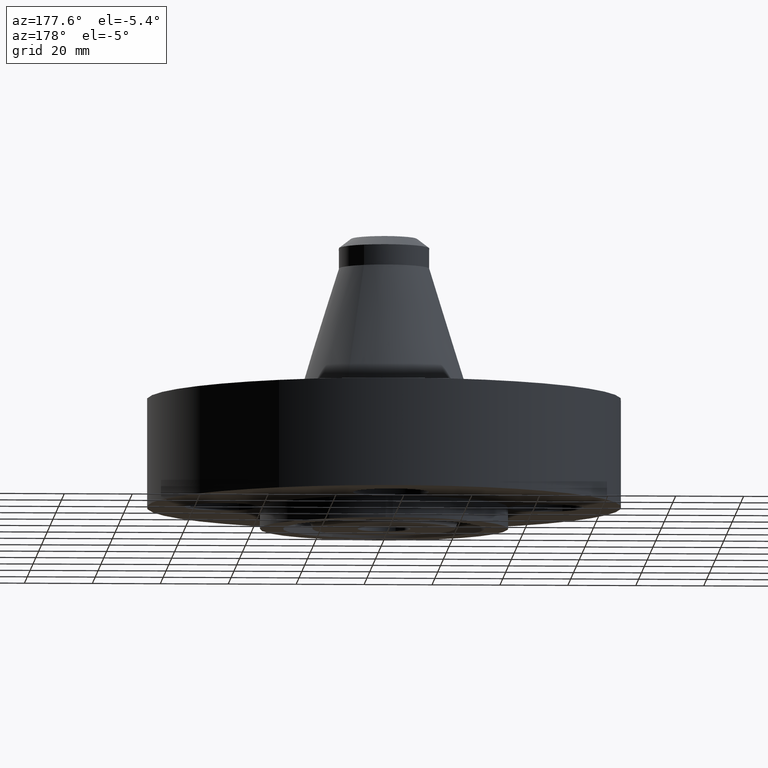
[diagram: clean part render]
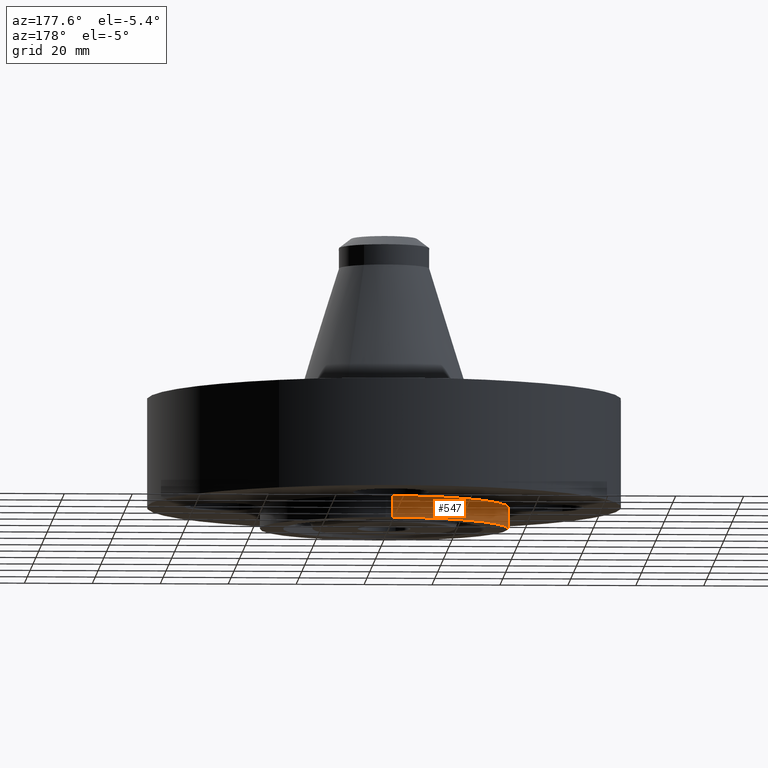
[diagram: same view with one face highlighted and labeled with its STEP entity id]
A machine part, auxiliary view. The second image highlights one B-rep face of the part: STEP entity #547.
In plain terms, the highlighted cylindrical surface (partial cylindrical patch) has radius 36.5125 mm, axis along (0, 0, -1).
Its self-contained STEP definition (entity closure, byte-faithful):
#127=AXIS2_PLACEMENT_3D('Cylinder Axis2P3D',#124,#125,#126) ;
#524=AXIS2_PLACEMENT_3D('Circle Axis2P3D',#522,#523,$) ;
#531=AXIS2_PLACEMENT_3D('Circle Axis2P3D',#529,#530,$) ;
#93=CARTESIAN_POINT('Vertex',(-0.0410064967415,1.43691500001,-0.250000000001)) ;
#96=CARTESIAN_POINT('Line Origine',(-0.0410064967415,1.43691500001,0.500000000002)) ;
#100=CARTESIAN_POINT('Vertex',(-0.0410064967415,1.43691500001,0.)) ;
#124=CARTESIAN_POINT('Axis2P3D Location',(0.,0.,1.43500000001)) ;
#522=CARTESIAN_POINT('Axis2P3D Location',(0.,0.,0.)) ;
#526=CARTESIAN_POINT('Vertex',(-1.43691500001,0.0410064967415,0.)) ;
#529=CARTESIAN_POINT('Axis2P3D Location',(0.,0.,-0.250000000001)) ;
#533=CARTESIAN_POINT('Vertex',(-1.43691500001,0.0410064967415,-0.250000000001)) ;
#536=CARTESIAN_POINT('Line Origine',(-1.43691500001,0.0410064967415,-0.125000000001)) ;
#97=DIRECTION('Vector Direction',(0.,0.,-0.0393700787402)) ;
#125=DIRECTION('Axis2P3D Direction',(0.,0.,-0.0393700787402)) ;
#126=DIRECTION('Axis2P3D XDirection',(0.0188750212049,0.0345504945626,0.)) ;
#523=DIRECTION('Axis2P3D Direction',(0.,0.,-0.0393700787402)) ;
#530=DIRECTION('Axis2P3D Direction',(0.,0.,-0.0393700787402)) ;
#537=DIRECTION('Vector Direction',(0.,0.,-0.0393700787402)) ;
#98=VECTOR('Line Direction',#97,0.0393700787402) ;
#538=VECTOR('Line Direction',#537,0.0393700787402) ;
#542=ORIENTED_EDGE('',*,*,#528,.T.) ;
#543=ORIENTED_EDGE('',*,*,#102,.T.) ;
#544=ORIENTED_EDGE('',*,*,#535,.F.) ;
#545=ORIENTED_EDGE('',*,*,#540,.F.) ;
#547=ADVANCED_FACE('PartBody',(#546),#128,.T.) ;
#525=CIRCLE('generated circle',#524,1.43750000001) ;
#532=CIRCLE('generated circle',#531,1.43750000001) ;
#128=CYLINDRICAL_SURFACE('generated cylinder',#127,1.43750000001) ;
#102=EDGE_CURVE('',#101,#94,#99,.T.) ;
#528=EDGE_CURVE('',#527,#101,#525,.T.) ;
#535=EDGE_CURVE('',#534,#94,#532,.T.) ;
#540=EDGE_CURVE('',#527,#534,#539,.T.) ;
#541=EDGE_LOOP('',(#542,#543,#544,#545)) ;
#546=FACE_OUTER_BOUND('',#541,.T.) ;
#99=LINE('Line',#96,#98) ;
#539=LINE('Line',#536,#538) ;
#94=VERTEX_POINT('',#93) ;
#101=VERTEX_POINT('',#100) ;
#527=VERTEX_POINT('',#526) ;
#534=VERTEX_POINT('',#533) ;